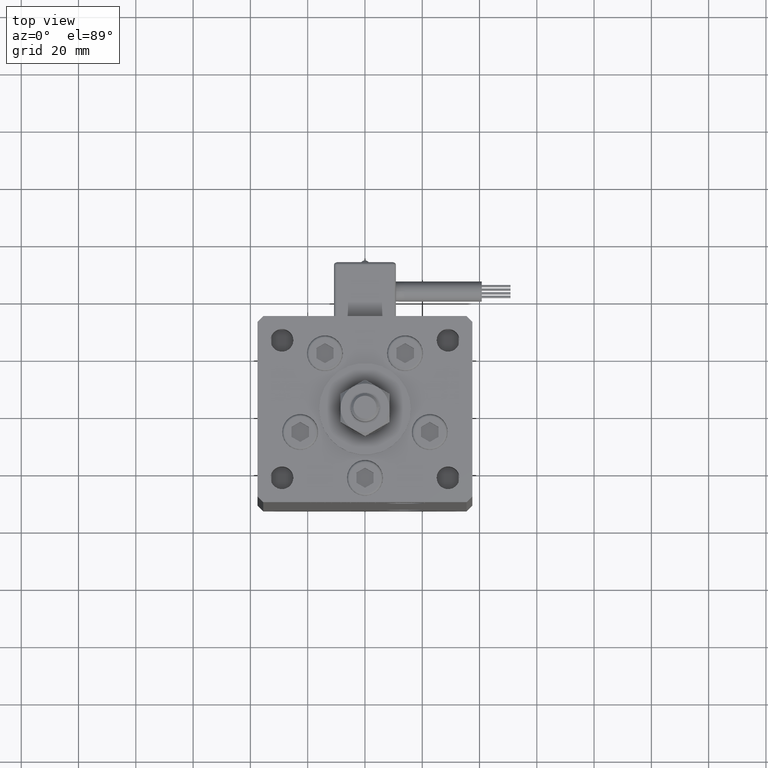
[diagram: clean part render]
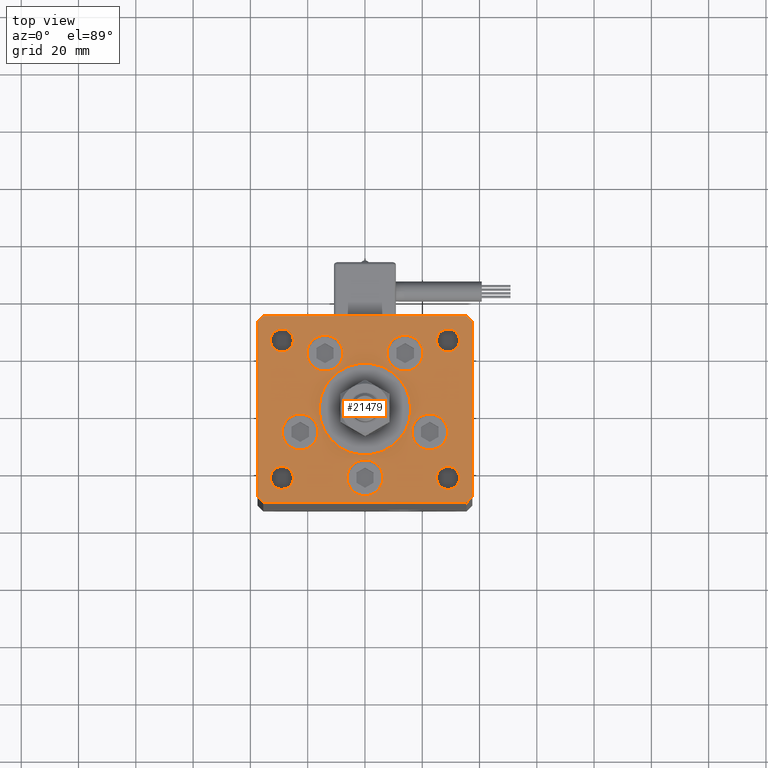
[diagram: same view with one face highlighted and labeled with its STEP entity id]
A machine part, top view. The second image highlights one B-rep face of the part: STEP entity #21479.
In plain terms, the highlighted planar face has unit normal (0, 0, 1).
Its self-contained STEP definition (entity closure, byte-faithful):
#181 = EDGE_CURVE ( 'NONE', #43269, #13577, #24659, .T. ) ;
#379 = FACE_BOUND ( 'NONE', #1058, .T. ) ;
#1058 = EDGE_LOOP ( 'NONE', ( #36296, #46638 ) ) ;
#1319 = CARTESIAN_POINT ( 'NONE',  ( 35.50000000000001421, -32.49999999999992184, 0.000000000000000000 ) ) ;
#1573 = DIRECTION ( 'NONE',  ( 0.000000000000000000, 0.000000000000000000, 1.000000000000000000 ) ) ;
#2421 = CARTESIAN_POINT ( 'NONE',  ( -25.00000000000000355, -23.99999999999999645, 0.000000000000000000 ) ) ;
#2487 = DIRECTION ( 'NONE',  ( -1.000000000000000000, 0.000000000000000000, 0.000000000000000000 ) ) ;
#2673 = CARTESIAN_POINT ( 'NONE',  ( -37.50000000000000000, -30.50000000000004263, 0.000000000000000000 ) ) ;
#2704 = LINE ( 'NONE', #50901, #50454 ) ;
#2756 = AXIS2_PLACEMENT_3D ( 'NONE', #33419, #7878, #56062 ) ;
#2937 = VERTEX_POINT ( 'NONE', #44692 ) ;
#3545 = CARTESIAN_POINT ( 'NONE',  ( 0.000000000000000000, -24.00000000000001066, 0.000000000000000000 ) ) ;
#3635 = FACE_BOUND ( 'NONE', #52947, .T. ) ;
#3708 = LINE ( 'NONE', #47028, #21948 ) ;
#3961 = ORIENTED_EDGE ( 'NONE', *, *, #10674, .F. ) ;
#4519 = VECTOR ( 'NONE', #56452, 1000.000000000000000 ) ;
#4932 = DIRECTION ( 'NONE',  ( 0.7071067811865463515, 0.7071067811865487940, 0.000000000000000000 ) ) ;
#5106 = VERTEX_POINT ( 'NONE', #28041 ) ;
#5181 = DIRECTION ( 'NONE',  ( 0.000000000000000000, 0.000000000000000000, 1.000000000000000000 ) ) ;
#5310 = VERTEX_POINT ( 'NONE', #15054 ) ;
#5332 = CARTESIAN_POINT ( 'NONE',  ( -13.99106857963324124, 19.50000000000000000, 0.000000000000000000 ) ) ;
#5426 = EDGE_CURVE ( 'NONE', #14960, #40968, #2704, .T. ) ;
#5987 = LINE ( 'NONE', #31538, #47910 ) ;
#6129 = CARTESIAN_POINT ( 'NONE',  ( -37.50000000000001421, 30.50000000000000000, 0.000000000000000000 ) ) ;
#6455 = VERTEX_POINT ( 'NONE', #52318 ) ;
#6560 = VERTEX_POINT ( 'NONE', #19005 ) ;
#7293 = VERTEX_POINT ( 'NONE', #39484 ) ;
#7422 = DIRECTION ( 'NONE',  ( -0.000000000000000000, -0.000000000000000000, -1.000000000000000000 ) ) ;
#7669 = ORIENTED_EDGE ( 'NONE', *, *, #32518, .T. ) ;
#7721 = DIRECTION ( 'NONE',  ( 0.000000000000000000, 0.000000000000000000, 1.000000000000000000 ) ) ;
#7727 = EDGE_CURVE ( 'NONE', #40381, #48747, #31341, .T. ) ;
#7878 = DIRECTION ( 'NONE',  ( 0.000000000000000000, 0.000000000000000000, 1.000000000000000000 ) ) ;
#7938 = VERTEX_POINT ( 'NONE', #39617 ) ;
#8300 = ORIENTED_EDGE ( 'NONE', *, *, #19987, .F. ) ;
#8431 = CARTESIAN_POINT ( 'NONE',  ( -25.00000000000000000, 24.00000000000000711, 0.000000000000000000 ) ) ;
#8562 = DIRECTION ( 'NONE',  ( 1.000000000000000000, 0.000000000000000000, 0.000000000000000000 ) ) ;
#8939 = LINE ( 'NONE', #12672, #11796 ) ;
#9000 = DIRECTION ( 'NONE',  ( -0.000000000000000000, -0.000000000000000000, -1.000000000000000000 ) ) ;
#9057 = EDGE_CURVE ( 'NONE', #34106, #16692, #27368, .T. ) ;
#9617 = EDGE_LOOP ( 'NONE', ( #41712, #45451 ) ) ;
#9794 = CIRCLE ( 'NONE', #30861, 4.000000000000000000 ) ;
#10006 = AXIS2_PLACEMENT_3D ( 'NONE', #29805, #7721, #8562 ) ;
#10136 = DIRECTION ( 'NONE',  ( 0.000000000000000000, 0.000000000000000000, 1.000000000000000000 ) ) ;
#10251 = ORIENTED_EDGE ( 'NONE', *, *, #22346, .T. ) ;
#10422 = EDGE_CURVE ( 'NONE', #5310, #6560, #48862, .T. ) ;
#10613 = LINE ( 'NONE', #36429, #51075 ) ;
#10674 = EDGE_CURVE ( 'NONE', #12364, #55044, #25967, .T. ) ;
#10926 = CARTESIAN_POINT ( 'NONE',  ( -29.00000000000000000, 24.00000000000000711, 0.000000000000000000 ) ) ;
#11063 = CARTESIAN_POINT ( 'NONE',  ( -13.99106857963324124, 19.50000000000000000, 0.000000000000000000 ) ) ;
#11079 = DIRECTION ( 'NONE',  ( 0.000000000000000000, 0.000000000000000000, 1.000000000000000000 ) ) ;
#11584 = DIRECTION ( 'NONE',  ( 0.000000000000000000, 1.000000000000000000, 0.000000000000000000 ) ) ;
#11695 = CARTESIAN_POINT ( 'NONE',  ( -32.99999999999999289, -23.99999999999999645, 0.000000000000000000 ) ) ;
#11796 = VECTOR ( 'NONE', #25888, 1000.000000000000000 ) ;
#11933 = ORIENTED_EDGE ( 'NONE', *, *, #41376, .F. ) ;
#12349 = EDGE_CURVE ( 'NONE', #35267, #7938, #40617, .T. ) ;
#12364 = VERTEX_POINT ( 'NONE', #2421 ) ;
#12498 = EDGE_LOOP ( 'NONE', ( #11933, #52398 ) ) ;
#12672 = CARTESIAN_POINT ( 'NONE',  ( 35.50000000000000000, 32.49999999999999289, 0.000000000000000000 ) ) ;
#13577 = VERTEX_POINT ( 'NONE', #46570 ) ;
#13860 = FACE_OUTER_BOUND ( 'NONE', #35733, .T. ) ;
#14120 = DIRECTION ( 'NONE',  ( 0.000000000000000000, 0.000000000000000000, 1.000000000000000000 ) ) ;
#14145 = DIRECTION ( 'NONE',  ( 1.000000000000000000, 0.000000000000000000, 0.000000000000000000 ) ) ;
#14342 = CIRCLE ( 'NONE', #45502, 4.000000000000000000 ) ;
#14662 = DIRECTION ( 'NONE',  ( 0.000000000000000000, 0.000000000000000000, 1.000000000000000000 ) ) ;
#14960 = VERTEX_POINT ( 'NONE', #54643 ) ;
#14995 = VERTEX_POINT ( 'NONE', #50907 ) ;
#15054 = CARTESIAN_POINT ( 'NONE',  ( 6.250000000000000000, -24.00000000000001066, 0.000000000000000000 ) ) ;
#15651 = DIRECTION ( 'NONE',  ( -0.000000000000000000, -0.000000000000000000, -1.000000000000000000 ) ) ;
#16414 = DIRECTION ( 'NONE',  ( 0.000000000000000000, 0.000000000000000000, 1.000000000000000000 ) ) ;
#16692 = VERTEX_POINT ( 'NONE', #2673 ) ;
#16735 = VECTOR ( 'NONE', #44849, 1000.000000000000000 ) ;
#18153 = FACE_BOUND ( 'NONE', #12498, .T. ) ;
#18323 = DIRECTION ( 'NONE',  ( 1.000000000000000000, 0.000000000000000000, 0.000000000000000000 ) ) ;
#18695 = DIRECTION ( 'NONE',  ( 1.000000000000000000, 0.000000000000000000, 0.000000000000000000 ) ) ;
#19005 = CARTESIAN_POINT ( 'NONE',  ( -6.250000000000000000, -24.00000000000001066, 0.000000000000000000 ) ) ;
#19719 = ORIENTED_EDGE ( 'NONE', *, *, #26060, .T. ) ;
#19744 = CARTESIAN_POINT ( 'NONE',  ( 28.87741699796953654, -8.000000000000000000, 0.000000000000000000 ) ) ;
#19905 = VERTEX_POINT ( 'NONE', #21810 ) ;
#19907 = AXIS2_PLACEMENT_3D ( 'NONE', #48874, #40235, #14145 ) ;
#19914 = ORIENTED_EDGE ( 'NONE', *, *, #10422, .F. ) ;
#19986 = ORIENTED_EDGE ( 'NONE', *, *, #42464, .F. ) ;
#19987 = EDGE_CURVE ( 'NONE', #48747, #40381, #14342, .T. ) ;
#19992 = EDGE_LOOP ( 'NONE', ( #19914, #19986 ) ) ;
#20031 = EDGE_CURVE ( 'NONE', #13577, #43269, #9794, .T. ) ;
#20100 = EDGE_CURVE ( 'NONE', #56747, #27631, #28115, .T. ) ;
#21075 = CARTESIAN_POINT ( 'NONE',  ( -37.50000000000001421, 30.50000000000000000, 0.000000000000000000 ) ) ;
#21207 = DIRECTION ( 'NONE',  ( 1.000000000000000000, 1.172770800660376149E-15, 0.000000000000000000 ) ) ;
#21416 = AXIS2_PLACEMENT_3D ( 'NONE', #11063, #33991, #46333 ) ;
#21479 = ADVANCED_FACE ( 'NONE', ( #39956, #3635, #35943, #18153, #35656, #31664, #53169, #38345, #22758, #13860, #379 ), #53458, .T. ) ;
#21497 = DIRECTION ( 'NONE',  ( 0.000000000000000000, 0.000000000000000000, 1.000000000000000000 ) ) ;
#21810 = CARTESIAN_POINT ( 'NONE',  ( 35.50000000000000000, 32.49999999999999289, 0.000000000000000000 ) ) ;
#21827 = CIRCLE ( 'NONE', #43808, 4.000000000000000000 ) ;
#21948 = VECTOR ( 'NONE', #21207, 1000.000000000000000 ) ;
#21994 = CIRCLE ( 'NONE', #35756, 16.00000000000000355 ) ;
#22004 = ORIENTED_EDGE ( 'NONE', *, *, #9057, .T. ) ;
#22346 = EDGE_CURVE ( 'NONE', #5106, #37138, #40991, .T. ) ;
#22758 = FACE_BOUND ( 'NONE', #43768, .T. ) ;
#23166 = ORIENTED_EDGE ( 'NONE', *, *, #51859, .T. ) ;
#23728 = CIRCLE ( 'NONE', #37467, 6.250000000000001776 ) ;
#23853 = CARTESIAN_POINT ( 'NONE',  ( 0.000000000000000000, -24.00000000000001066, 0.000000000000000000 ) ) ;
#24489 = CARTESIAN_POINT ( 'NONE',  ( -35.50000000000000711, 32.49999999999997868, 0.000000000000000000 ) ) ;
#24561 = CARTESIAN_POINT ( 'NONE',  ( -29.00000000000000000, -23.99999999999999645, 0.000000000000000000 ) ) ;
#24659 = CIRCLE ( 'NONE', #38371, 4.000000000000000000 ) ;
#25082 = EDGE_LOOP ( 'NONE', ( #8300, #25787 ) ) ;
#25321 = DIRECTION ( 'NONE',  ( 1.000000000000000000, 0.000000000000000000, 0.000000000000000000 ) ) ;
#25416 = EDGE_LOOP ( 'NONE', ( #44322, #10251 ) ) ;
#25444 = EDGE_LOOP ( 'NONE', ( #37252, #32907 ) ) ;
#25526 = DIRECTION ( 'NONE',  ( 1.000000000000000000, 0.000000000000000000, 0.000000000000000000 ) ) ;
#25683 = ORIENTED_EDGE ( 'NONE', *, *, #5426, .T. ) ;
#25782 = CARTESIAN_POINT ( 'NONE',  ( -37.50000000000000000, -30.50000000000004263, 0.000000000000000000 ) ) ;
#25787 = ORIENTED_EDGE ( 'NONE', *, *, #7727, .F. ) ;
#25888 = DIRECTION ( 'NONE',  ( -1.000000000000000000, -1.954618001100627573E-16, 0.000000000000000000 ) ) ;
#25925 = AXIS2_PLACEMENT_3D ( 'NONE', #23853, #14662, #18695 ) ;
#25967 = CIRCLE ( 'NONE', #43350, 3.999999999999996447 ) ;
#26060 = EDGE_CURVE ( 'NONE', #19905, #40346, #8939, .T. ) ;
#26230 = CARTESIAN_POINT ( 'NONE',  ( -29.00000000000000000, 24.00000000000000711, 0.000000000000000000 ) ) ;
#26839 = AXIS2_PLACEMENT_3D ( 'NONE', #45566, #41559, #46421 ) ;
#26964 = AXIS2_PLACEMENT_3D ( 'NONE', #35527, #21497, #18323 ) ;
#27368 = LINE ( 'NONE', #6129, #16735 ) ;
#27509 = CIRCLE ( 'NONE', #2756, 3.999999999999996447 ) ;
#27564 = DIRECTION ( 'NONE',  ( -0.7071067811865524577, -0.7071067811865426878, 0.000000000000000000 ) ) ;
#27631 = VERTEX_POINT ( 'NONE', #39886 ) ;
#27818 = CARTESIAN_POINT ( 'NONE',  ( 24.99999999999999645, 24.00000000000000355, 0.000000000000000000 ) ) ;
#28041 = CARTESIAN_POINT ( 'NONE',  ( -33.00000000000000000, 24.00000000000000711, 0.000000000000000000 ) ) ;
#28115 = CIRCLE ( 'NONE', #47343, 6.250000000000000000 ) ;
#28128 = CARTESIAN_POINT ( 'NONE',  ( 33.00000000000000000, 24.00000000000000355, 0.000000000000000000 ) ) ;
#28267 = CARTESIAN_POINT ( 'NONE',  ( 25.00000000000000355, -23.99999999999999645, 0.000000000000000000 ) ) ;
#28319 = ORIENTED_EDGE ( 'NONE', *, *, #33458, .F. ) ;
#28594 = DIRECTION ( 'NONE',  ( 1.000000000000000000, 0.000000000000000000, 0.000000000000000000 ) ) ;
#28677 = CIRCLE ( 'NONE', #26839, 6.250000000000000000 ) ;
#28782 = CARTESIAN_POINT ( 'NONE',  ( 0.000000000000000000, -6.938893903907228378E-15, 0.000000000000000000 ) ) ;
#28995 = EDGE_CURVE ( 'NONE', #55044, #12364, #27509, .T. ) ;
#29171 = CARTESIAN_POINT ( 'NONE',  ( 13.99106857963324124, 19.50000000000000000, 0.000000000000000000 ) ) ;
#29179 = VERTEX_POINT ( 'NONE', #48594 ) ;
#29632 = DIRECTION ( 'NONE',  ( 0.000000000000000000, 0.000000000000000000, 1.000000000000000000 ) ) ;
#29671 = DIRECTION ( 'NONE',  ( 0.000000000000000000, 0.000000000000000000, 1.000000000000000000 ) ) ;
#29805 = CARTESIAN_POINT ( 'NONE',  ( -22.62741699796953299, -8.000000000000000000, 0.000000000000000000 ) ) ;
#30307 = DIRECTION ( 'NONE',  ( 1.000000000000000000, 0.000000000000000000, 0.000000000000000000 ) ) ;
#30861 = AXIS2_PLACEMENT_3D ( 'NONE', #35573, #53081, #2487 ) ;
#30913 = EDGE_CURVE ( 'NONE', #51379, #6455, #34724, .T. ) ;
#30958 = EDGE_CURVE ( 'NONE', #16692, #29179, #47567, .T. ) ;
#31067 = DIRECTION ( 'NONE',  ( 1.000000000000000000, 0.000000000000000000, 0.000000000000000000 ) ) ;
#31341 = CIRCLE ( 'NONE', #56051, 4.000000000000000000 ) ;
#31538 = CARTESIAN_POINT ( 'NONE',  ( 37.50000000000000711, 30.50000000000001421, 0.000000000000000000 ) ) ;
#31664 = FACE_BOUND ( 'NONE', #25444, .T. ) ;
#31817 = DIRECTION ( 'NONE',  ( -0.7071067811865524577, 0.7071067811865426878, 0.000000000000000000 ) ) ;
#32518 = EDGE_CURVE ( 'NONE', #29179, #53241, #3708, .T. ) ;
#32907 = ORIENTED_EDGE ( 'NONE', *, *, #43634, .F. ) ;
#32911 = DIRECTION ( 'NONE',  ( 1.000000000000000000, 0.000000000000000000, 0.000000000000000000 ) ) ;
#33419 = CARTESIAN_POINT ( 'NONE',  ( -29.00000000000000000, -23.99999999999999645, 0.000000000000000000 ) ) ;
#33458 = EDGE_CURVE ( 'NONE', #2937, #7293, #21994, .T. ) ;
#33869 = CARTESIAN_POINT ( 'NONE',  ( 20.24106857963324302, 19.50000000000000000, 0.000000000000000000 ) ) ;
#33991 = DIRECTION ( 'NONE',  ( 0.000000000000000000, 0.000000000000000000, 1.000000000000000000 ) ) ;
#34106 = VERTEX_POINT ( 'NONE', #21075 ) ;
#34150 = CIRCLE ( 'NONE', #26964, 6.250000000000001776 ) ;
#34724 = CIRCLE ( 'NONE', #10006, 6.250000000000001776 ) ;
#35267 = VERTEX_POINT ( 'NONE', #50606 ) ;
#35315 = LINE ( 'NONE', #53401, #53490 ) ;
#35527 = CARTESIAN_POINT ( 'NONE',  ( -22.62741699796953299, -8.000000000000000000, 0.000000000000000000 ) ) ;
#35573 = CARTESIAN_POINT ( 'NONE',  ( 29.00000000000000355, -23.99999999999999645, 0.000000000000000000 ) ) ;
#35656 = FACE_BOUND ( 'NONE', #19992, .T. ) ;
#35733 = EDGE_LOOP ( 'NONE', ( #52982, #7669, #42116, #25683, #49285, #19719, #23166, #22004 ) ) ;
#35756 = AXIS2_PLACEMENT_3D ( 'NONE', #39263, #52474, #25526 ) ;
#35919 = CARTESIAN_POINT ( 'NONE',  ( 22.62741699796953299, -8.000000000000000000, 0.000000000000000000 ) ) ;
#35943 = FACE_BOUND ( 'NONE', #9617, .T. ) ;
#36296 = ORIENTED_EDGE ( 'NONE', *, *, #20031, .T. ) ;
#36429 = CARTESIAN_POINT ( 'NONE',  ( -35.50000000000000711, 32.49999999999997868, 0.000000000000000000 ) ) ;
#36906 = ORIENTED_EDGE ( 'NONE', *, *, #54793, .F. ) ;
#36929 = ORIENTED_EDGE ( 'NONE', *, *, #12349, .F. ) ;
#37138 = VERTEX_POINT ( 'NONE', #8431 ) ;
#37252 = ORIENTED_EDGE ( 'NONE', *, *, #30913, .F. ) ;
#37467 = AXIS2_PLACEMENT_3D ( 'NONE', #51135, #29632, #55157 ) ;
#37752 = ORIENTED_EDGE ( 'NONE', *, *, #28995, .F. ) ;
#37813 = CARTESIAN_POINT ( 'NONE',  ( -16.37741699796953299, -8.000000000000000000, 0.000000000000000000 ) ) ;
#38345 = FACE_BOUND ( 'NONE', #25082, .T. ) ;
#38371 = AXIS2_PLACEMENT_3D ( 'NONE', #50656, #15651, #46052 ) ;
#38780 = CIRCLE ( 'NONE', #55293, 6.250000000000001776 ) ;
#38808 = AXIS2_PLACEMENT_3D ( 'NONE', #5332, #1573, #49786 ) ;
#39263 = CARTESIAN_POINT ( 'NONE',  ( 0.000000000000000000, -6.938893903907228378E-15, 0.000000000000000000 ) ) ;
#39484 = CARTESIAN_POINT ( 'NONE',  ( 16.00000000000000355, -4.979459025271462852E-15, 0.000000000000000000 ) ) ;
#39617 = CARTESIAN_POINT ( 'NONE',  ( -7.741068579633241242, 19.50000000000000000, 0.000000000000000000 ) ) ;
#39886 = CARTESIAN_POINT ( 'NONE',  ( 7.741068579633241242, 19.50000000000000000, 0.000000000000000000 ) ) ;
#39956 = FACE_BOUND ( 'NONE', #43716, .T. ) ;
#40204 = AXIS2_PLACEMENT_3D ( 'NONE', #28782, #16414, #25321 ) ;
#40235 = DIRECTION ( 'NONE',  ( -0.000000000000000000, 0.000000000000000000, 1.000000000000000000 ) ) ;
#40346 = VERTEX_POINT ( 'NONE', #24489 ) ;
#40381 = VERTEX_POINT ( 'NONE', #27818 ) ;
#40525 = EDGE_CURVE ( 'NONE', #27631, #56747, #28677, .T. ) ;
#40617 = CIRCLE ( 'NONE', #38808, 6.250000000000000000 ) ;
#40968 = VERTEX_POINT ( 'NONE', #51521 ) ;
#40991 = CIRCLE ( 'NONE', #50181, 4.000000000000000000 ) ;
#41376 = EDGE_CURVE ( 'NONE', #54981, #14995, #38780, .T. ) ;
#41559 = DIRECTION ( 'NONE',  ( 0.000000000000000000, 0.000000000000000000, 1.000000000000000000 ) ) ;
#41712 = ORIENTED_EDGE ( 'NONE', *, *, #20100, .F. ) ;
#42116 = ORIENTED_EDGE ( 'NONE', *, *, #45059, .T. ) ;
#42464 = EDGE_CURVE ( 'NONE', #6560, #5310, #55330, .T. ) ;
#42567 = ORIENTED_EDGE ( 'NONE', *, *, #45335, .F. ) ;
#43269 = VERTEX_POINT ( 'NONE', #28267 ) ;
#43350 = AXIS2_PLACEMENT_3D ( 'NONE', #24561, #11079, #28594 ) ;
#43634 = EDGE_CURVE ( 'NONE', #6455, #51379, #34150, .T. ) ;
#43716 = EDGE_LOOP ( 'NONE', ( #28319, #36906 ) ) ;
#43768 = EDGE_LOOP ( 'NONE', ( #3961, #37752 ) ) ;
#43808 = AXIS2_PLACEMENT_3D ( 'NONE', #26230, #9000, #48600 ) ;
#43875 = EDGE_CURVE ( 'NONE', #40968, #19905, #5987, .T. ) ;
#44322 = ORIENTED_EDGE ( 'NONE', *, *, #54637, .T. ) ;
#44692 = CARTESIAN_POINT ( 'NONE',  ( -16.00000000000000355, -6.938893903907228378E-15, 0.000000000000000000 ) ) ;
#44743 = CARTESIAN_POINT ( 'NONE',  ( 29.00000000000000000, 24.00000000000000355, 0.000000000000000000 ) ) ;
#44849 = DIRECTION ( 'NONE',  ( 2.275047181608926165E-16, -1.000000000000000000, 0.000000000000000000 ) ) ;
#45059 = EDGE_CURVE ( 'NONE', #53241, #14960, #35315, .T. ) ;
#45335 = EDGE_CURVE ( 'NONE', #7938, #35267, #54381, .T. ) ;
#45451 = ORIENTED_EDGE ( 'NONE', *, *, #40525, .F. ) ;
#45502 = AXIS2_PLACEMENT_3D ( 'NONE', #44743, #5181, #32911 ) ;
#45566 = CARTESIAN_POINT ( 'NONE',  ( 13.99106857963324124, 19.50000000000000000, 0.000000000000000000 ) ) ;
#46052 = DIRECTION ( 'NONE',  ( -1.000000000000000000, 0.000000000000000000, 0.000000000000000000 ) ) ;
#46333 = DIRECTION ( 'NONE',  ( 1.000000000000000000, 0.000000000000000000, 0.000000000000000000 ) ) ;
#46421 = DIRECTION ( 'NONE',  ( 1.000000000000000000, 0.000000000000000000, 0.000000000000000000 ) ) ;
#46570 = CARTESIAN_POINT ( 'NONE',  ( 33.00000000000000000, -23.99999999999999645, 0.000000000000000000 ) ) ;
#46638 = ORIENTED_EDGE ( 'NONE', *, *, #181, .T. ) ;
#47028 = CARTESIAN_POINT ( 'NONE',  ( -35.50000000000001421, -32.50000000000000711, 0.000000000000000000 ) ) ;
#47343 = AXIS2_PLACEMENT_3D ( 'NONE', #29171, #51534, #30307 ) ;
#47567 = LINE ( 'NONE', #25782, #4519 ) ;
#47910 = VECTOR ( 'NONE', #31817, 1000.000000000000000 ) ;
#48594 = CARTESIAN_POINT ( 'NONE',  ( -35.50000000000001421, -32.50000000000000711, 0.000000000000000000 ) ) ;
#48600 = DIRECTION ( 'NONE',  ( -1.000000000000000000, 0.000000000000000000, 0.000000000000000000 ) ) ;
#48747 = VERTEX_POINT ( 'NONE', #28128 ) ;
#48862 = CIRCLE ( 'NONE', #25925, 6.250000000000000000 ) ;
#48874 = CARTESIAN_POINT ( 'NONE',  ( 0.000000000000000000, 0.000000000000000000, 0.000000000000000000 ) ) ;
#49166 = DIRECTION ( 'NONE',  ( 1.000000000000000000, 0.000000000000000000, 0.000000000000000000 ) ) ;
#49285 = ORIENTED_EDGE ( 'NONE', *, *, #43875, .T. ) ;
#49452 = CARTESIAN_POINT ( 'NONE',  ( 29.00000000000000000, 24.00000000000000355, 0.000000000000000000 ) ) ;
#49786 = DIRECTION ( 'NONE',  ( 1.000000000000000000, 0.000000000000000000, 0.000000000000000000 ) ) ;
#50181 = AXIS2_PLACEMENT_3D ( 'NONE', #10926, #7422, #54257 ) ;
#50454 = VECTOR ( 'NONE', #11584, 1000.000000000000000 ) ;
#50606 = CARTESIAN_POINT ( 'NONE',  ( -20.24106857963324302, 19.50000000000000000, 0.000000000000000000 ) ) ;
#50656 = CARTESIAN_POINT ( 'NONE',  ( 29.00000000000000355, -23.99999999999999645, 0.000000000000000000 ) ) ;
#50901 = CARTESIAN_POINT ( 'NONE',  ( 37.50000000000000711, -30.49999999999992895, 0.000000000000000000 ) ) ;
#50907 = CARTESIAN_POINT ( 'NONE',  ( 16.37741699796953299, -8.000000000000000000, 0.000000000000000000 ) ) ;
#51075 = VECTOR ( 'NONE', #27564, 1000.000000000000000 ) ;
#51135 = CARTESIAN_POINT ( 'NONE',  ( 22.62741699796953299, -8.000000000000000000, 0.000000000000000000 ) ) ;
#51379 = VERTEX_POINT ( 'NONE', #37813 ) ;
#51521 = CARTESIAN_POINT ( 'NONE',  ( 37.50000000000000711, 30.50000000000001421, 0.000000000000000000 ) ) ;
#51534 = DIRECTION ( 'NONE',  ( 0.000000000000000000, 0.000000000000000000, 1.000000000000000000 ) ) ;
#51745 = DIRECTION ( 'NONE',  ( 1.000000000000000000, 0.000000000000000000, 0.000000000000000000 ) ) ;
#51859 = EDGE_CURVE ( 'NONE', #40346, #34106, #10613, .T. ) ;
#52318 = CARTESIAN_POINT ( 'NONE',  ( -28.87741699796953654, -8.000000000000000000, 0.000000000000000000 ) ) ;
#52398 = ORIENTED_EDGE ( 'NONE', *, *, #54769, .F. ) ;
#52474 = DIRECTION ( 'NONE',  ( 0.000000000000000000, 0.000000000000000000, 1.000000000000000000 ) ) ;
#52947 = EDGE_LOOP ( 'NONE', ( #42567, #36929 ) ) ;
#52982 = ORIENTED_EDGE ( 'NONE', *, *, #30958, .T. ) ;
#53081 = DIRECTION ( 'NONE',  ( -0.000000000000000000, -0.000000000000000000, -1.000000000000000000 ) ) ;
#53169 = FACE_BOUND ( 'NONE', #25416, .T. ) ;
#53241 = VERTEX_POINT ( 'NONE', #1319 ) ;
#53401 = CARTESIAN_POINT ( 'NONE',  ( 35.50000000000001421, -32.49999999999992184, 0.000000000000000000 ) ) ;
#53458 = PLANE ( 'NONE',  #19907 ) ;
#53490 = VECTOR ( 'NONE', #4932, 1000.000000000000000 ) ;
#53495 = AXIS2_PLACEMENT_3D ( 'NONE', #3545, #29671, #51745 ) ;
#54257 = DIRECTION ( 'NONE',  ( -1.000000000000000000, 0.000000000000000000, 0.000000000000000000 ) ) ;
#54381 = CIRCLE ( 'NONE', #21416, 6.250000000000000000 ) ;
#54637 = EDGE_CURVE ( 'NONE', #37138, #5106, #21827, .T. ) ;
#54643 = CARTESIAN_POINT ( 'NONE',  ( 37.50000000000000711, -30.49999999999992895, 0.000000000000000000 ) ) ;
#54769 = EDGE_CURVE ( 'NONE', #14995, #54981, #23728, .T. ) ;
#54793 = EDGE_CURVE ( 'NONE', #7293, #2937, #55774, .T. ) ;
#54981 = VERTEX_POINT ( 'NONE', #19744 ) ;
#55044 = VERTEX_POINT ( 'NONE', #11695 ) ;
#55157 = DIRECTION ( 'NONE',  ( 1.000000000000000000, 0.000000000000000000, 0.000000000000000000 ) ) ;
#55293 = AXIS2_PLACEMENT_3D ( 'NONE', #35919, #14120, #31067 ) ;
#55330 = CIRCLE ( 'NONE', #53495, 6.250000000000000000 ) ;
#55774 = CIRCLE ( 'NONE', #40204, 16.00000000000000355 ) ;
#56051 = AXIS2_PLACEMENT_3D ( 'NONE', #49452, #10136, #49166 ) ;
#56062 = DIRECTION ( 'NONE',  ( 1.000000000000000000, 0.000000000000000000, 0.000000000000000000 ) ) ;
#56452 = DIRECTION ( 'NONE',  ( 0.7071067811865512365, -0.7071067811865439090, 0.000000000000000000 ) ) ;
#56747 = VERTEX_POINT ( 'NONE', #33869 ) ;